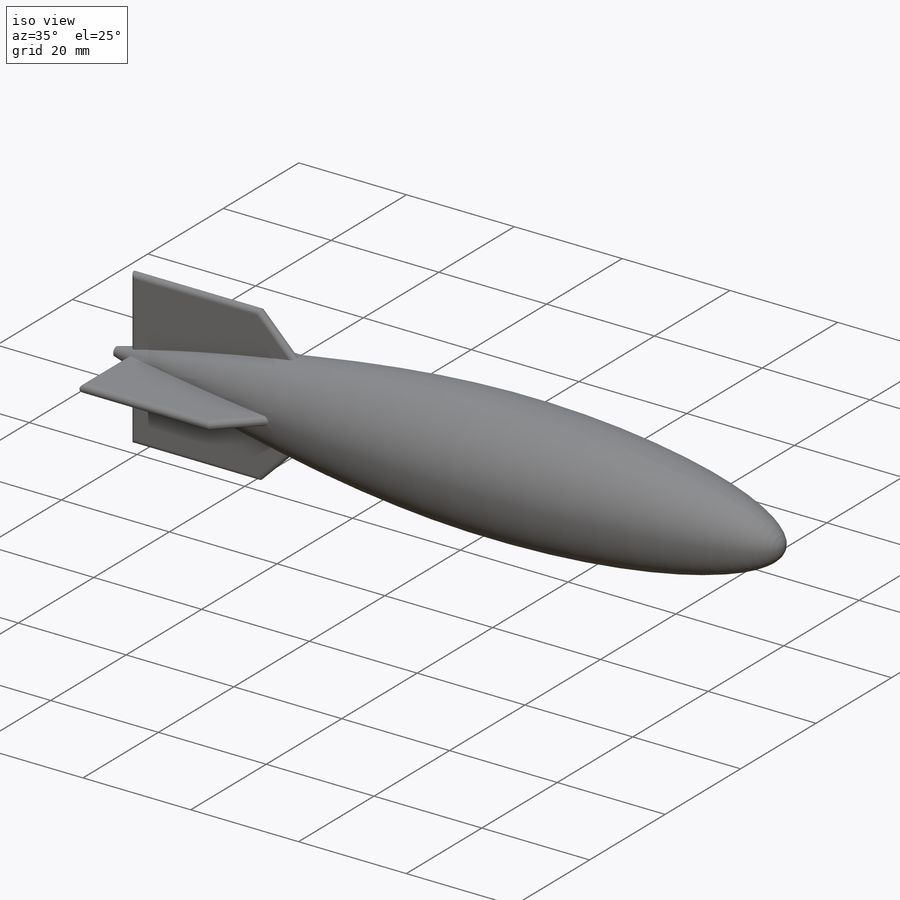
[diagram: iso view]
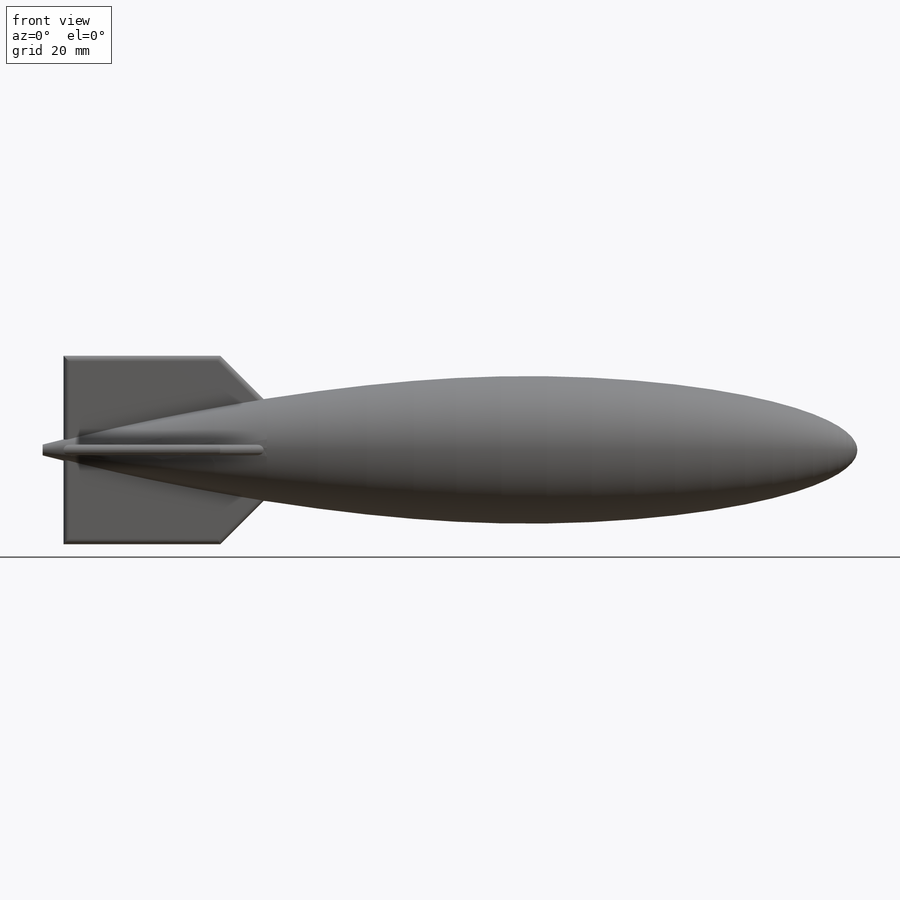
[diagram: front view]
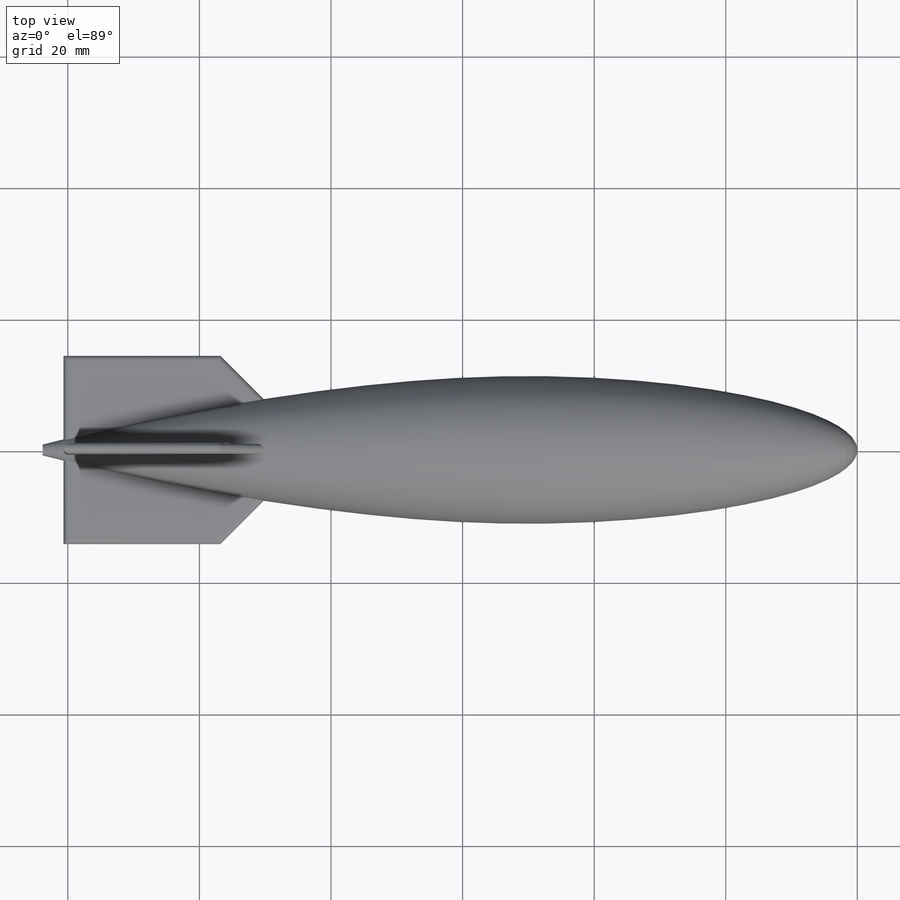
[diagram: top view]
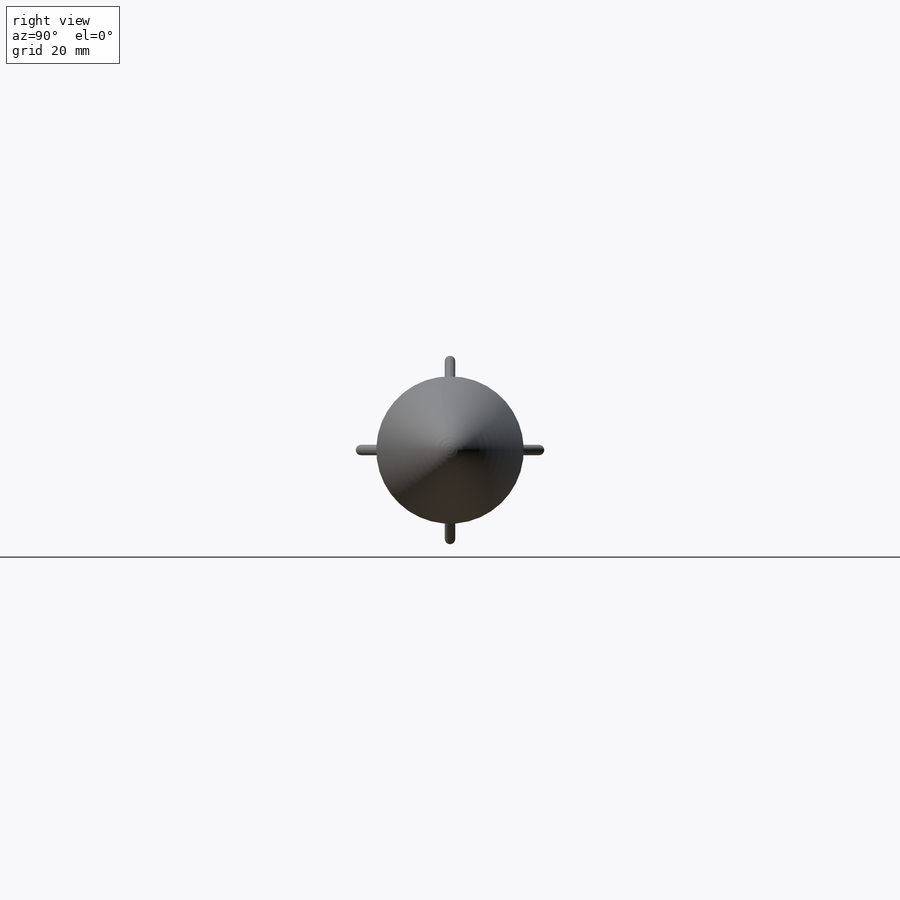
[diagram: right view]
SOLIDWORKS PART (.sldprt)
format: sldprt  version: not decoded by parser v0  size: 282,624 bytes
history: native  units: mm
features: sketch x3, material x1, revolve x1, plane x1, cut_extrude x1, extrude x1, pattern_circular x1, fillet x1 (+11 scaffold rows collapsed)
feature tree (21):
  scaffold x11  (default folders/planes/origin — collapsed)
  material  "Rubber"
  sketch  "Sketch2"  dims[c1.D5=~19.856779mm c1.D1=127.0mm c1.D2=~14.988463mm c2.D2=96.47deg c2.D3=11.1125mm c2.D4=57.15mm]
  revolve  "Revolve1"  Angle=360deg
  plane  "Plane1"
  sketch  "Sketch3"  dims[D1=~13.018648mm]
  cut_extrude  "Cut-Extrude1"  Depth=3.175mm
  sketch  "Sketch4"  dims[c1.D1=12.7mm c1.D2=23.8125mm c1.D3=12.7mm c1.D4=~6.188826mm c2.D4=135.0deg c2.D3=3.175mm c2.D5=~0.79375mm]
  extrude  "Boss-Extrude5"  Depth=0.79375mm
  pattern_circular  "CirPattern1"  Count=4 Angle=360deg
  fillet  "Fillet2"  Radius=0.79375mm
decode coverage: 8 of 8 modeling features carry decoded parameters
note: ~ marks probable driven/reference dimensions
note: suppression state not decoded; provenance and decode notes live in map.json
